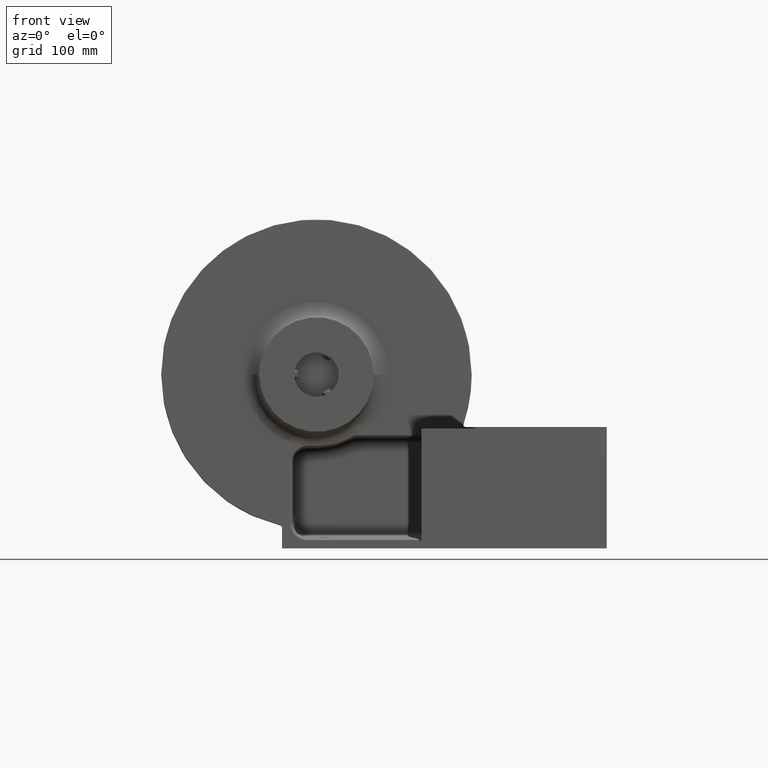
[diagram: clean part render]
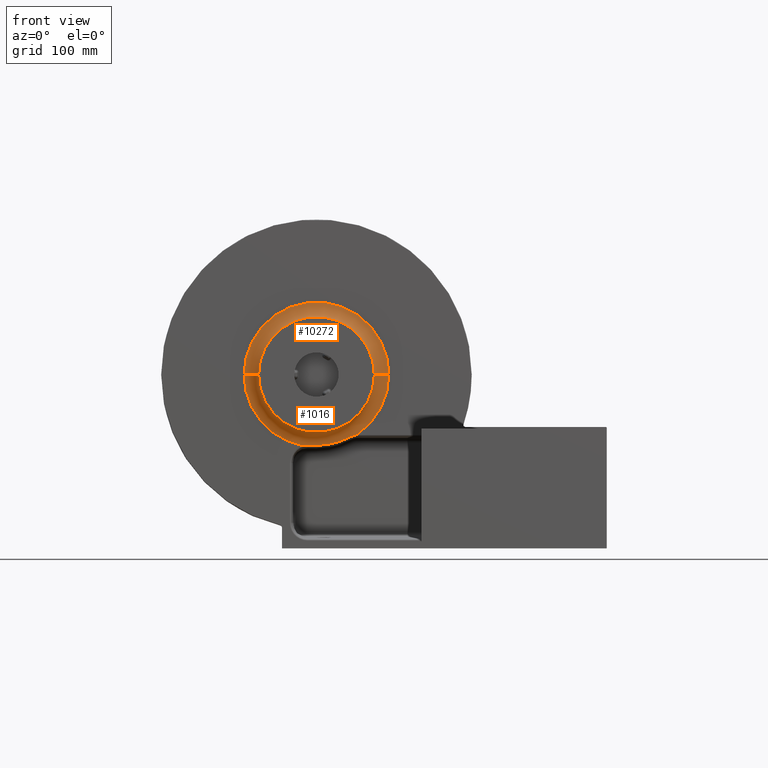
[diagram: same view with one multi-face feature highlighted, each face labeled with its STEP entity id]
A machine part, front view. The highlighted faces form ONE feature: a constant-radius fillet chain: 2 tangent blend faces with common blend radius 15 mm. The faces share edges in the B-rep.
Their STEP definitions:
[1] entity #10272 (Torus):
#680 = CARTESIAN_POINT ( 'NONE',  ( -168.7417837622144816, 384.9999000000000251, 55.99999999999999289 ) ) ;
#755 = AXIS2_PLACEMENT_3D ( 'NONE', #5444, #5645, #5494 ) ;
#763 = CIRCLE ( 'NONE', #3635, 60.00000000000002842 ) ;
#1089 = ORIENTED_EDGE ( 'NONE', *, *, #8387, .T. ) ;
#1191 = EDGE_CURVE ( 'NONE', #7493, #8489, #763, .T. ) ;
#1221 = ORIENTED_EDGE ( 'NONE', *, *, #1191, .T. ) ;
#1375 = EDGE_LOOP ( 'NONE', ( #3236, #6661, #1089, #1221 ) ) ;
#1865 = AXIS2_PLACEMENT_3D ( 'NONE', #9322, #9254, #9272 ) ;
#3035 = DIRECTION ( 'NONE',  ( 0.0000000000000000000, -0.0000000000000000000, -1.000000000000000000 ) ) ;
#3189 = DIRECTION ( 'NONE',  ( -1.000000000000000000, 0.0000000000000000000, 0.0000000000000000000 ) ) ;
#3236 = ORIENTED_EDGE ( 'NONE', *, *, #4208, .F. ) ;
#3298 = EDGE_CURVE ( 'NONE', #3607, #10228, #6989, .T. ) ;
#3607 = VERTEX_POINT ( 'NONE', #11159 ) ;
#3635 = AXIS2_PLACEMENT_3D ( 'NONE', #10889, #10846, #10825 ) ;
#3965 = CIRCLE ( 'NONE', #10436, 15.00000000000001421 ) ;
#4208 = EDGE_CURVE ( 'NONE', #10228, #8489, #6817, .T. ) ;
#4691 = TOROIDAL_SURFACE ( 'NONE', #6083, 75.00000000000004263, 15.00000000000000000 ) ;
#5444 = CARTESIAN_POINT ( 'NONE',  ( -108.7417837622144674, 399.9998999999999683, 55.99999999999999289 ) ) ;
#5494 = DIRECTION ( 'NONE',  ( -1.000000000000000000, 0.0000000000000000000, 0.0000000000000000000 ) ) ;
#5645 = DIRECTION ( 'NONE',  ( -1.214623636765614367E-16, 1.000000000000000000, -0.0000000000000000000 ) ) ;
#6083 = AXIS2_PLACEMENT_3D ( 'NONE', #7206, #7185, #7172 ) ;
#6661 = ORIENTED_EDGE ( 'NONE', *, *, #3298, .F. ) ;
#6817 = CIRCLE ( 'NONE', #1865, 15.00000000000000000 ) ;
#6989 = CIRCLE ( 'NONE', #755, 75.00000000000004263 ) ;
#7172 = DIRECTION ( 'NONE',  ( -1.000000000000000000, -1.214623636765614367E-16, 0.0000000000000000000 ) ) ;
#7185 = DIRECTION ( 'NONE',  ( -1.214623636765614367E-16, 1.000000000000000000, -0.0000000000000000000 ) ) ;
#7206 = CARTESIAN_POINT ( 'NONE',  ( -108.7417837622144674, 384.9999000000000251, 55.99999999999999289 ) ) ;
#7275 = FACE_OUTER_BOUND ( 'NONE', #1375, .T. ) ;
#7493 = VERTEX_POINT ( 'NONE', #680 ) ;
#7873 = CARTESIAN_POINT ( 'NONE',  ( -33.74178376221442477, 399.9998999999999683, 56.00000000000000000 ) ) ;
#8387 = EDGE_CURVE ( 'NONE', #3607, #7493, #3965, .T. ) ;
#8489 = VERTEX_POINT ( 'NONE', #8709 ) ;
#8709 = CARTESIAN_POINT ( 'NONE',  ( -48.74178376221442477, 384.9999000000000251, 56.00000000000000000 ) ) ;
#8898 = CARTESIAN_POINT ( 'NONE',  ( -183.7417837622145100, 384.9999000000000251, 55.99999999999999289 ) ) ;
#9254 = DIRECTION ( 'NONE',  ( -1.224646799147353207E-16, -1.487484948933726914E-32, 1.000000000000000000 ) ) ;
#9272 = DIRECTION ( 'NONE',  ( 1.000000000000000000, 0.0000000000000000000, 0.0000000000000000000 ) ) ;
#9322 = CARTESIAN_POINT ( 'NONE',  ( -33.74178376221442477, 384.9999000000000251, 56.00000000000000000 ) ) ;
#10228 = VERTEX_POINT ( 'NONE', #7873 ) ;
#10272 = ADVANCED_FACE ( 'NONE', ( #7275 ), #4691, .F. ) ;
#10436 = AXIS2_PLACEMENT_3D ( 'NONE', #8898, #3035, #3189 ) ;
#10825 = DIRECTION ( 'NONE',  ( -1.000000000000000000, 0.0000000000000000000, 0.0000000000000000000 ) ) ;
#10846 = DIRECTION ( 'NONE',  ( -1.214623636765614367E-16, 1.000000000000000000, -0.0000000000000000000 ) ) ;
#10889 = CARTESIAN_POINT ( 'NONE',  ( -108.7417837622144674, 384.9999000000000251, 55.99999999999999289 ) ) ;
#11159 = CARTESIAN_POINT ( 'NONE',  ( -183.7417837622145100, 399.9998999999999683, 55.99999999999999289 ) ) ;
[2] entity #1016 (Torus):
#311 = DIRECTION ( 'NONE',  ( -1.214623636765614367E-16, 1.000000000000000000, -0.0000000000000000000 ) ) ;
#631 = ORIENTED_EDGE ( 'NONE', *, *, #8995, .T. ) ;
#680 = CARTESIAN_POINT ( 'NONE',  ( -168.7417837622144816, 384.9999000000000251, 55.99999999999999289 ) ) ;
#739 = CIRCLE ( 'NONE', #6976, 73.27830368419817830 ) ;
#1016 = ADVANCED_FACE ( 'NONE', ( #5287 ), #5169, .F. ) ;
#1489 = VERTEX_POINT ( 'NONE', #5988 ) ;
#1695 = ORIENTED_EDGE ( 'NONE', *, *, #7027, .T. ) ;
#1865 = AXIS2_PLACEMENT_3D ( 'NONE', #9322, #9254, #9272 ) ;
#1950 = B_SPLINE_CURVE_WITH_KNOTS ( 'NONE', 3,
 ( #10709, #9596, #10510, #4546, #7972, #9339, #3226, #4043 ),
 .UNSPECIFIED., .F., .F.,
 ( 4, 2, 2, 4 ),
 ( 0.0000000000000000000, 0.001916073407169556443, 0.003832146814339112886, 0.007664293628678266537 ),
 .UNSPECIFIED. ) ;
#2409 = ORIENTED_EDGE ( 'NONE', *, *, #2868, .T. ) ;
#2516 = ORIENTED_EDGE ( 'NONE', *, *, #6887, .F. ) ;
#2528 = DIRECTION ( 'NONE',  ( -1.000000000000000000, 0.0000000000000000000, 0.0000000000000000000 ) ) ;
#2566 = CIRCLE ( 'NONE', #8911, 60.00000000000002842 ) ;
#2868 = EDGE_CURVE ( 'NONE', #3400, #10873, #5956, .T. ) ;
#3035 = DIRECTION ( 'NONE',  ( 0.0000000000000000000, -0.0000000000000000000, -1.000000000000000000 ) ) ;
#3189 = DIRECTION ( 'NONE',  ( -1.000000000000000000, 0.0000000000000000000, 0.0000000000000000000 ) ) ;
#3226 = CARTESIAN_POINT ( 'NONE',  ( -68.34159002964264573, 399.9999000000000819, -6.518559194274613944 ) ) ;
#3400 = VERTEX_POINT ( 'NONE', #11029 ) ;
#3435 = CIRCLE ( 'NONE', #9858, 75.00000000000004263 ) ;
#3607 = VERTEX_POINT ( 'NONE', #11159 ) ;
#3778 = CIRCLE ( 'NONE', #5149, 75.00000000000004263 ) ;
#3802 = AXIS2_PLACEMENT_3D ( 'NONE', #5068, #5013, #4955 ) ;
#3909 = CARTESIAN_POINT ( 'NONE',  ( -118.0037598678097481, 399.9512921137017543, -17.20985094419565087 ) ) ;
#3934 = CARTESIAN_POINT ( 'NONE',  ( -118.8044753407115905, 399.9584613198943543, -17.19809475205235572 ) ) ;
#3951 = CARTESIAN_POINT ( 'NONE',  ( -114.9167052517641991, 399.9236521694027147, -17.25517541768379104 ) ) ;
#3962 = CARTESIAN_POINT ( 'NONE',  ( -111.8293010418698117, 399.9007644647267057, -17.27830368419860818 ) ) ;
#3965 = CIRCLE ( 'NONE', #10436, 15.00000000000001421 ) ;
#4011 = CARTESIAN_POINT ( 'NONE',  ( -108.7417837622144390, 399.9007644647267057, -17.27830368419862239 ) ) ;
#4043 = CARTESIAN_POINT ( 'NONE',  ( -67.07233491408234727, 399.9998999999999683, -6.359097433276797773 ) ) ;
#4169 = ORIENTED_EDGE ( 'NONE', *, *, #8387, .F. ) ;
#4208 = EDGE_CURVE ( 'NONE', #10228, #8489, #6817, .T. ) ;
#4234 = CARTESIAN_POINT ( 'NONE',  ( -118.0037598678097481, 399.9512921137017543, -17.20985094419565087 ) ) ;
#4526 = CARTESIAN_POINT ( 'NONE',  ( -121.1844436705740833, 399.9904005374718281, -17.38618852885822363 ) ) ;
#4546 = CARTESIAN_POINT ( 'NONE',  ( -71.97700556461660426, 399.9208867736244883, -7.602065211228446806 ) ) ;
#4685 = CARTESIAN_POINT ( 'NONE',  ( -119.6007505863601068, 399.9696995915387561, -17.23085238240681250 ) ) ;
#4807 = EDGE_LOOP ( 'NONE', ( #2516, #5404, #7566, #4169, #6590, #4976, #2409, #1695, #631 ) ) ;
#4955 = DIRECTION ( 'NONE',  ( -1.000000000000000000, -1.214623636765614367E-16, 0.0000000000000000000 ) ) ;
#4976 = ORIENTED_EDGE ( 'NONE', *, *, #7780, .T. ) ;
#5013 = DIRECTION ( 'NONE',  ( -1.214623636765614367E-16, 1.000000000000000000, -0.0000000000000000000 ) ) ;
#5068 = CARTESIAN_POINT ( 'NONE',  ( -108.7417837622144674, 384.9999000000000251, 55.99999999999999289 ) ) ;
#5149 = AXIS2_PLACEMENT_3D ( 'NONE', #5267, #5401, #5386 ) ;
#5169 = TOROIDAL_SURFACE ( 'NONE', #3802, 75.00000000000004263, 15.00000000000000000 ) ;
#5267 = CARTESIAN_POINT ( 'NONE',  ( -108.7417837622144674, 399.9998999999999683, 55.99999999999999289 ) ) ;
#5287 = FACE_OUTER_BOUND ( 'NONE', #4807, .T. ) ;
#5386 = DIRECTION ( 'NONE',  ( -1.000000000000000000, 0.0000000000000000000, 0.0000000000000000000 ) ) ;
#5401 = DIRECTION ( 'NONE',  ( -1.214623636765614367E-16, 1.000000000000000000, -0.0000000000000000000 ) ) ;
#5404 = ORIENTED_EDGE ( 'NONE', *, *, #4208, .T. ) ;
#5813 = CARTESIAN_POINT ( 'NONE',  ( -122.7546367390819597, 399.9998999999999683, -17.67930477039467263 ) ) ;
#5956 = B_SPLINE_CURVE_WITH_KNOTS ( 'NONE', 3,
 ( #3909, #3951, #3962, #4011 ),
 .UNSPECIFIED., .F., .F.,
 ( 4, 4 ),
 ( 0.0000000000000000000, 0.009262466065965618833 ),
 .UNSPECIFIED. ) ;
#5988 = CARTESIAN_POINT ( 'NONE',  ( -74.29231819311290508, 399.9007644647267057, -8.675684092531415814 ) ) ;
#6164 = CARTESIAN_POINT ( 'NONE',  ( -122.7546367390819597, 399.9998999999999683, -17.67930477039467263 ) ) ;
#6377 = CARTESIAN_POINT ( 'NONE',  ( -121.9718631329313610, 399.9998999999999114, -17.50874680306374742 ) ) ;
#6590 = ORIENTED_EDGE ( 'NONE', *, *, #7263, .F. ) ;
#6817 = CIRCLE ( 'NONE', #1865, 15.00000000000000000 ) ;
#6887 = EDGE_CURVE ( 'NONE', #10228, #8322, #3778, .T. ) ;
#6976 = AXIS2_PLACEMENT_3D ( 'NONE', #8352, #8338, #8486 ) ;
#7027 = EDGE_CURVE ( 'NONE', #10873, #1489, #739, .T. ) ;
#7065 = CARTESIAN_POINT ( 'NONE',  ( -108.7417837622144674, 384.9999000000000251, 55.99999999999999289 ) ) ;
#7263 = EDGE_CURVE ( 'NONE', #8573, #3607, #3435, .T. ) ;
#7493 = VERTEX_POINT ( 'NONE', #680 ) ;
#7566 = ORIENTED_EDGE ( 'NONE', *, *, #8921, .T. ) ;
#7780 = EDGE_CURVE ( 'NONE', #8573, #3400, #8786, .T. ) ;
#7873 = CARTESIAN_POINT ( 'NONE',  ( -33.74178376221442477, 399.9998999999999683, 56.00000000000000000 ) ) ;
#7972 = CARTESIAN_POINT ( 'NONE',  ( -71.38260902974745647, 399.9322099620833910, -7.380691009474353415 ) ) ;
#8016 = CARTESIAN_POINT ( 'NONE',  ( -67.07233491408234727, 399.9998999999999683, -6.359097433276797773 ) ) ;
#8322 = VERTEX_POINT ( 'NONE', #8016 ) ;
#8338 = DIRECTION ( 'NONE',  ( 1.228705302314797606E-16, -1.000000000000000000, -0.0000000000000000000 ) ) ;
#8352 = CARTESIAN_POINT ( 'NONE',  ( -108.7417837622144674, 399.9007644647305142, 55.99999999999999289 ) ) ;
#8387 = EDGE_CURVE ( 'NONE', #3607, #7493, #3965, .T. ) ;
#8486 = DIRECTION ( 'NONE',  ( 1.000000000000000000, 0.0000000000000000000, 0.0000000000000000000 ) ) ;
#8489 = VERTEX_POINT ( 'NONE', #8709 ) ;
#8573 = VERTEX_POINT ( 'NONE', #5813 ) ;
#8709 = CARTESIAN_POINT ( 'NONE',  ( -48.74178376221442477, 384.9999000000000251, 56.00000000000000000 ) ) ;
#8786 = B_SPLINE_CURVE_WITH_KNOTS ( 'NONE', 3,
 ( #6164, #6377, #4526, #4685, #3934, #4234 ),
 .UNSPECIFIED., .F., .F.,
 ( 4, 2, 4 ),
 ( 0.0000000000000000000, 0.002387131158290872832, 0.004774262316581745665 ),
 .UNSPECIFIED. ) ;
#8898 = CARTESIAN_POINT ( 'NONE',  ( -183.7417837622145100, 384.9999000000000251, 55.99999999999999289 ) ) ;
#8911 = AXIS2_PLACEMENT_3D ( 'NONE', #7065, #311, #2528 ) ;
#8921 = EDGE_CURVE ( 'NONE', #8489, #7493, #2566, .T. ) ;
#8995 = EDGE_CURVE ( 'NONE', #1489, #8322, #1950, .T. ) ;
#9254 = DIRECTION ( 'NONE',  ( -1.224646799147353207E-16, -1.487484948933726914E-32, 1.000000000000000000 ) ) ;
#9272 = DIRECTION ( 'NONE',  ( 1.000000000000000000, 0.0000000000000000000, 0.0000000000000000000 ) ) ;
#9322 = CARTESIAN_POINT ( 'NONE',  ( -33.74178376221442477, 384.9999000000000251, 56.00000000000000000 ) ) ;
#9339 = CARTESIAN_POINT ( 'NONE',  ( -69.57629214359725722, 399.9693432065977277, -6.798526359991633683 ) ) ;
#9596 = CARTESIAN_POINT ( 'NONE',  ( -73.72827206813929024, 399.9007644647266488, -8.375245251654765966 ) ) ;
#9858 = AXIS2_PLACEMENT_3D ( 'NONE', #10089, #10031, #10149 ) ;
#10031 = DIRECTION ( 'NONE',  ( -1.214623636765614367E-16, 1.000000000000000000, -0.0000000000000000000 ) ) ;
#10089 = CARTESIAN_POINT ( 'NONE',  ( -108.7417837622144674, 399.9998999999999683, 55.99999999999999289 ) ) ;
#10149 = DIRECTION ( 'NONE',  ( -1.000000000000000000, 0.0000000000000000000, 0.0000000000000000000 ) ) ;
#10228 = VERTEX_POINT ( 'NONE', #7873 ) ;
#10436 = AXIS2_PLACEMENT_3D ( 'NONE', #8898, #3035, #3189 ) ;
#10510 = CARTESIAN_POINT ( 'NONE',  ( -73.15043834580404791, 399.9051396538654899, -8.099511259710638456 ) ) ;
#10709 = CARTESIAN_POINT ( 'NONE',  ( -74.29231819311290508, 399.9007644647267057, -8.675684092531415814 ) ) ;
#10873 = VERTEX_POINT ( 'NONE', #11048 ) ;
#11029 = CARTESIAN_POINT ( 'NONE',  ( -118.0037598678097481, 399.9512921137017543, -17.20985094419565087 ) ) ;
#11048 = CARTESIAN_POINT ( 'NONE',  ( -108.7417837622144390, 399.9007644647267057, -17.27830368419862239 ) ) ;
#11159 = CARTESIAN_POINT ( 'NONE',  ( -183.7417837622145100, 399.9998999999999683, 55.99999999999999289 ) ) ;